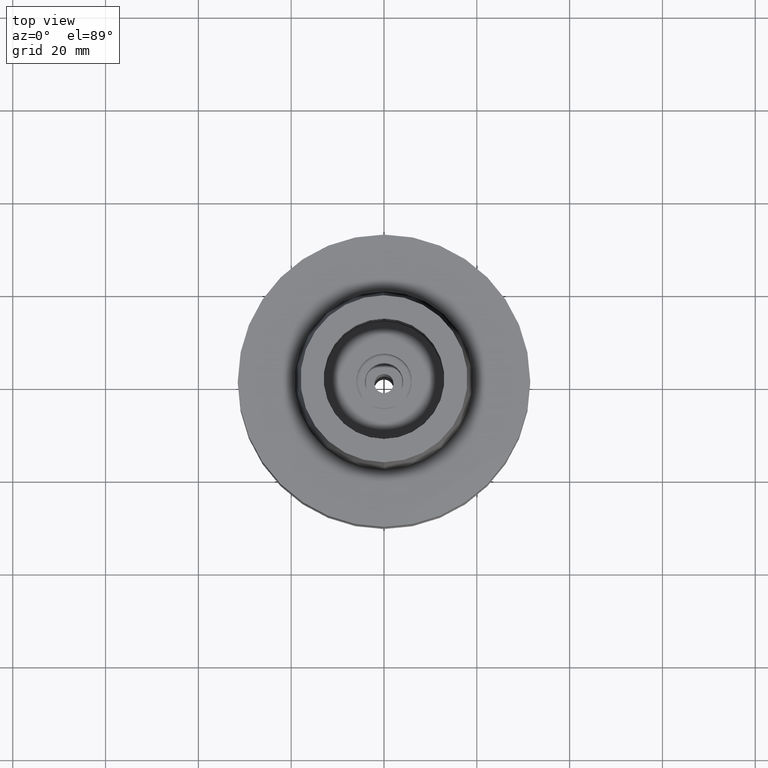
[diagram: clean part render]
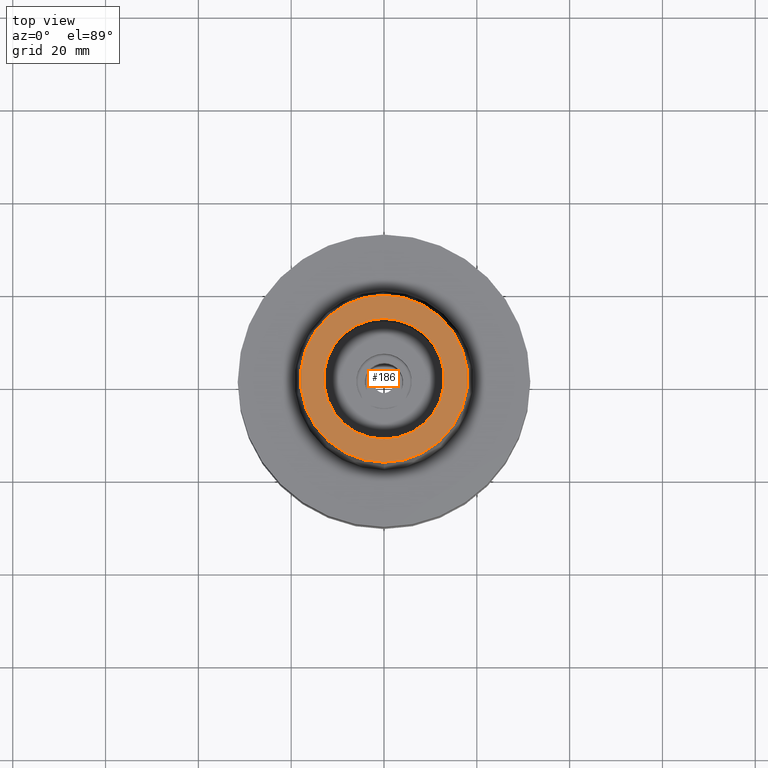
[diagram: same view with one face highlighted and labeled with its STEP entity id]
A machine part, top view. The second image highlights one B-rep face of the part: STEP entity #186.
In plain terms, the highlighted planar face has unit normal (0, 0, 1).
Its self-contained STEP definition (entity closure, byte-faithful):
#88 = CIRCLE ( 'NONE', #400, 18.00000182882000033 ) ;
#91 = DIRECTION ( 'NONE',  ( 0.0000000000000000000, 0.0000000000000000000, 1.000000000000000000 ) ) ;
#94 = DIRECTION ( 'NONE',  ( 0.0000000000000000000, -1.000000000000000000, 0.0000000000000000000 ) ) ;
#186 = ADVANCED_FACE ( 'NONE', ( #576, #392 ), #998, .T. ) ;
#347 = CIRCLE ( 'NONE', #1668, 13.00000000000000000 ) ;
#375 = EDGE_LOOP ( 'NONE', ( #2610, #2243 ) ) ;
#383 = AXIS2_PLACEMENT_3D ( 'NONE', #2107, #2551, #1866 ) ;
#392 = FACE_BOUND ( 'NONE', #2400, .T. ) ;
#400 = AXIS2_PLACEMENT_3D ( 'NONE', #1146, #703, #2008 ) ;
#522 = CARTESIAN_POINT ( 'NONE',  ( 0.0000000000000000000, 0.0000000000000000000, 25.00000000000000000 ) ) ;
#556 = CARTESIAN_POINT ( 'NONE',  ( 0.0000000000000000000, 0.0000000000000000000, 25.00000000000000000 ) ) ;
#576 = FACE_OUTER_BOUND ( 'NONE', #375, .T. ) ;
#648 = VERTEX_POINT ( 'NONE', #1142 ) ;
#703 = DIRECTION ( 'NONE',  ( 0.0000000000000000000, 0.0000000000000000000, -1.000000000000000000 ) ) ;
#746 = EDGE_CURVE ( 'NONE', #2314, #1685, #2204, .T. ) ;
#998 = PLANE ( 'NONE',  #383 ) ;
#1142 = CARTESIAN_POINT ( 'NONE',  ( 0.0000000000000000000, -13.00000000000000000, 25.00000000000000000 ) ) ;
#1146 = CARTESIAN_POINT ( 'NONE',  ( 0.0000000000000000000, 0.0000000000000000000, 25.00000000000000000 ) ) ;
#1162 = AXIS2_PLACEMENT_3D ( 'NONE', #522, #91, #1389 ) ;
#1169 = CARTESIAN_POINT ( 'NONE',  ( 0.0000000000000000000, -18.00000182882000033, 25.00000000000000000 ) ) ;
#1293 = EDGE_CURVE ( 'NONE', #648, #1621, #2022, .T. ) ;
#1382 = DIRECTION ( 'NONE',  ( 0.0000000000000000000, 1.000000000000000000, 0.0000000000000000000 ) ) ;
#1389 = DIRECTION ( 'NONE',  ( 0.0000000000000000000, -1.000000000000000000, 0.0000000000000000000 ) ) ;
#1439 = DIRECTION ( 'NONE',  ( 0.0000000000000000000, 0.0000000000000000000, 1.000000000000000000 ) ) ;
#1570 = DIRECTION ( 'NONE',  ( 0.0000000000000000000, 0.0000000000000000000, -1.000000000000000000 ) ) ;
#1586 = CARTESIAN_POINT ( 'NONE',  ( 0.0000000000000000000, 13.00000000000000000, 25.00000000000000000 ) ) ;
#1621 = VERTEX_POINT ( 'NONE', #1586 ) ;
#1668 = AXIS2_PLACEMENT_3D ( 'NONE', #556, #1439, #1382 ) ;
#1685 = VERTEX_POINT ( 'NONE', #2056 ) ;
#1755 = ORIENTED_EDGE ( 'NONE', *, *, #2033, .F. ) ;
#1866 = DIRECTION ( 'NONE',  ( 1.000000000000000000, 0.0000000000000000000, 0.0000000000000000000 ) ) ;
#2008 = DIRECTION ( 'NONE',  ( 0.0000000000000000000, 1.000000000000000000, 0.0000000000000000000 ) ) ;
#2022 = CIRCLE ( 'NONE', #1162, 13.00000000000000000 ) ;
#2033 = EDGE_CURVE ( 'NONE', #1621, #648, #347, .T. ) ;
#2056 = CARTESIAN_POINT ( 'NONE',  ( 0.0000000000000000000, 18.00000182882000033, 25.00000000000000000 ) ) ;
#2107 = CARTESIAN_POINT ( 'NONE',  ( 0.0000000000000000000, 0.0000000000000000000, 25.00000000000000000 ) ) ;
#2204 = CIRCLE ( 'NONE', #2565, 18.00000182882000033 ) ;
#2239 = CARTESIAN_POINT ( 'NONE',  ( 0.0000000000000000000, 0.0000000000000000000, 25.00000000000000000 ) ) ;
#2243 = ORIENTED_EDGE ( 'NONE', *, *, #746, .F. ) ;
#2314 = VERTEX_POINT ( 'NONE', #1169 ) ;
#2400 = EDGE_LOOP ( 'NONE', ( #1755, #2495 ) ) ;
#2495 = ORIENTED_EDGE ( 'NONE', *, *, #1293, .F. ) ;
#2551 = DIRECTION ( 'NONE',  ( 0.0000000000000000000, 0.0000000000000000000, 1.000000000000000000 ) ) ;
#2565 = AXIS2_PLACEMENT_3D ( 'NONE', #2239, #1570, #94 ) ;
#2590 = EDGE_CURVE ( 'NONE', #1685, #2314, #88, .T. ) ;
#2610 = ORIENTED_EDGE ( 'NONE', *, *, #2590, .F. ) ;